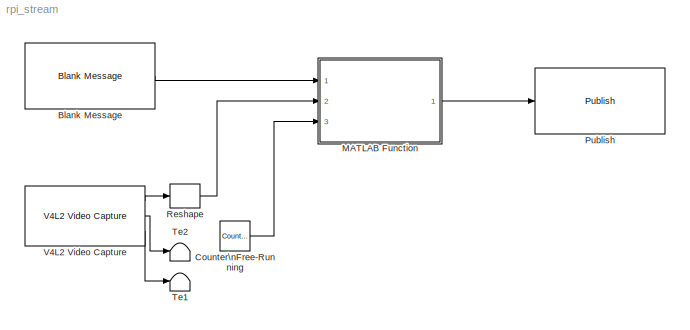
MODEL rpi_stream
KIND model
BLOCK [Reference] Blank Message  REF=robotlib/Blank Message
  Ports = [0, 1]
  SID = 4
  SampleTime = 1/15
  SourceBlock = robotlib/Blank Message
  SourceProductBaseCode = RR
  SourceProductName = ROS Toolbox
  SourceType = ROS Blank Message
  entityType = sensor_msgs/Image
  messageClass = Message
  messageType = sensor_msgs/Image
BLOCK [Reference] Counter\nFree-Running  REF=simulink/Sources/Counter\nFree-Running
  NumBits = 32
  Ports = [0, 1]
  SID = 5
  SourceBlock = simulink/Sources/Counter\nFree-Running
  SourceProductBaseCode = SL
  SourceProductName = Simulink
  SourceType = Counter Free-Running
  tsamp = -1
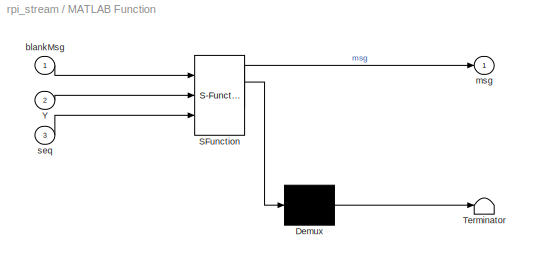
BLOCK [SubSystem] MATLAB Function
  ErrorFcn = Stateflow.Translate.translate
  PermitHierarchicalResolution = ExplicitOnly
  Ports = [3, 1]
  RequestExecContextInheritance = off
  SFBlockType = MATLAB Function
  SID = 6
  TreatAsAtomicUnit = on
BLOCK [Demux] MATLAB Function/ Demux 
  Outputs = 1
  Ports = [1, 1]
  SID = 6::22
BLOCK [S-Function] MATLAB Function/ SFunction 
  EnableBusSupport = off
  FunctionName = sf_sfun
  PortCounts = [3 2]
  Ports = [3, 2]
  SFcnIsStateOwnerBlock = off
  SFunctionDeploymentMode = off
  SID = 6::21
  Tag = Stateflow S-Function 1
BLOCK [Terminator] MATLAB Function/ Terminator 
  SID = 6::23
BLOCK [Inport] MATLAB Function/Y
  IconDisplay = Port number
  Port = 2
  SID = 6::19
BLOCK [Inport] MATLAB Function/blankMsg
  IconDisplay = Port number
  SID = 6::1
BLOCK [Outport] MATLAB Function/msg
  IconDisplay = Port number
  SID = 6::5
BLOCK [Inport] MATLAB Function/seq
  IconDisplay = Port number
  Port = 3
  SID = 6::20
BLOCK [Reference] Publish  REF=robotlib/Publish
  Ports = [1]
  SID = 7
  SourceBlock = robotlib/Publish
  SourceProductBaseCode = RR
  SourceProductName = ROS Toolbox
  SourceType = ROS Publish
  messageQueueLength = 1
  messageType = sensor_msgs/Image
  topic = /camera
  topicSource = Specify your own
BLOCK [Reshape] Reshape
  Ports = [1, 1]
  SID = 8
BLOCK [Terminator] Te1
  SID = 9
BLOCK [Terminator] Te2
  SID = 10
BLOCK [Reference] V4L2 Video Capture  REF=embdlinuxlib/V4L2 Video Capture
  MultiThreadCoSim = auto
  Ports = [0, 3]
  SID = 11
  SourceBlock = embdlinuxlib/V4L2 Video Capture
  SourceProductBaseCode = RASPPI
  SourceProductName = Simulink Support Package for Raspberry Pi Hardware
  SourceType = V4L2 Video Capture
  blockPlatform = Raspberry Pi
  imSize = [1920, 1080]
  imSizeSelection = Custom
  m_devName = '/dev/video0'
  pixelFormat = YCbCr 4:2:2
  pixelOrder = Planar
  roi = [0, 0, 640, 480]
  sampleTime = 1/15
  simOutput = Colorbars
LINE Blank Message:1 -> MATLAB Function:1
LINE Counter\nFree-Running:1 -> MATLAB Function:3
LINE MATLAB Function/ Demux :1 -> MATLAB Function/ Terminator :1
LINE MATLAB Function/ SFunction :1 -> MATLAB Function/ Demux :1
LINE MATLAB Function/ SFunction :2 -> MATLAB Function/msg:1
LINE MATLAB Function/Y:1 -> MATLAB Function/ SFunction :2
LINE MATLAB Function/blankMsg:1 -> MATLAB Function/ SFunction :1
LINE MATLAB Function/seq:1 -> MATLAB Function/ SFunction :3
LINE MATLAB Function:1 -> Publish:1
LINE Reshape:1 -> MATLAB Function:2
LINE V4L2 Video Capture:1 -> Reshape:1
LINE V4L2 Video Capture:2 -> Te2:1
LINE V4L2 Video Capture:3 -> Te1:1
CHART MATLAB Function states=1 transitions=1
  STATE_LABEL 'eML_blk_kernel()'
